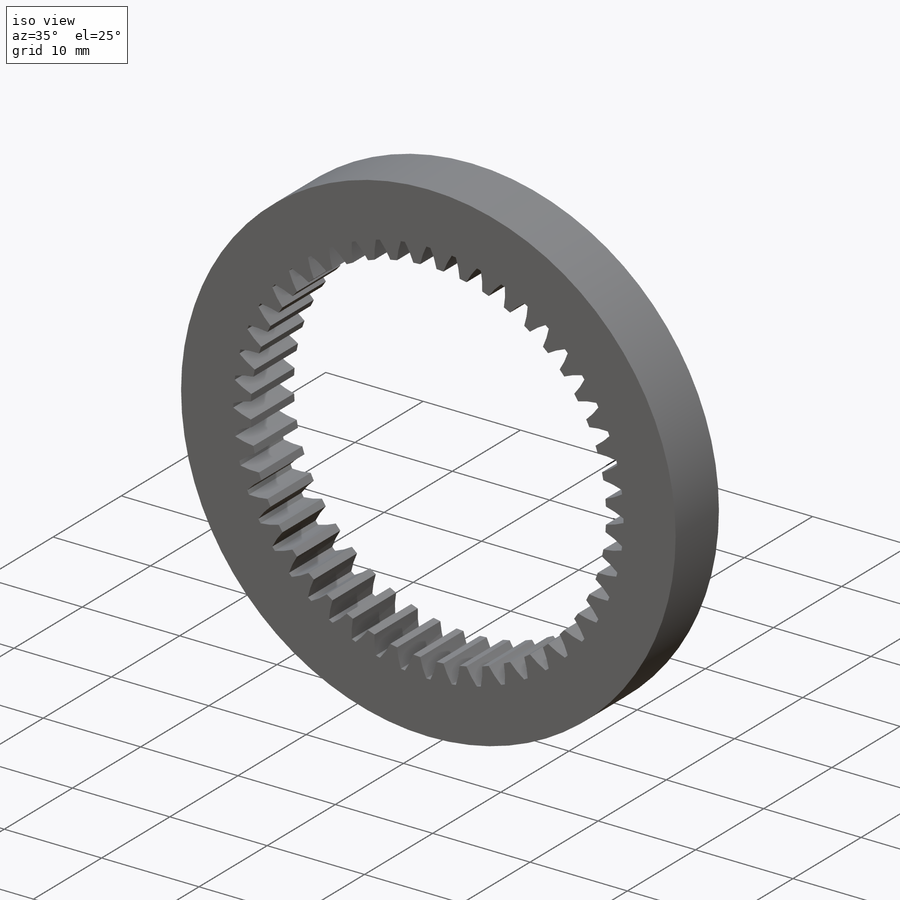
[diagram: iso view]
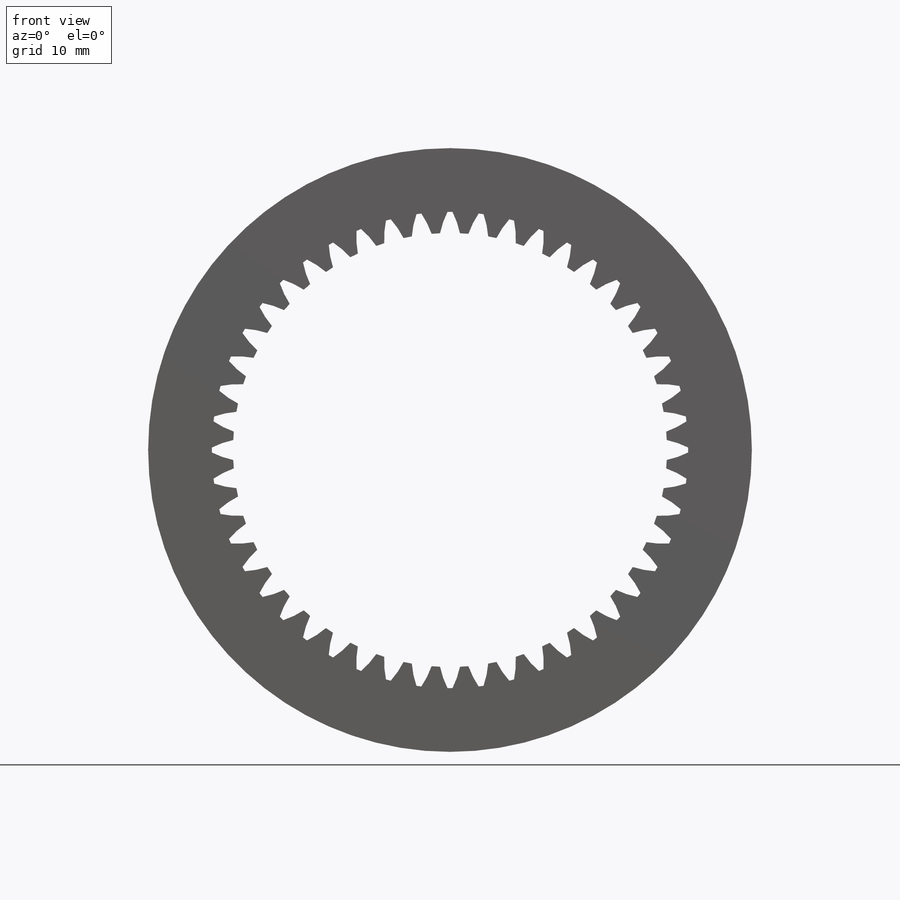
[diagram: front view]
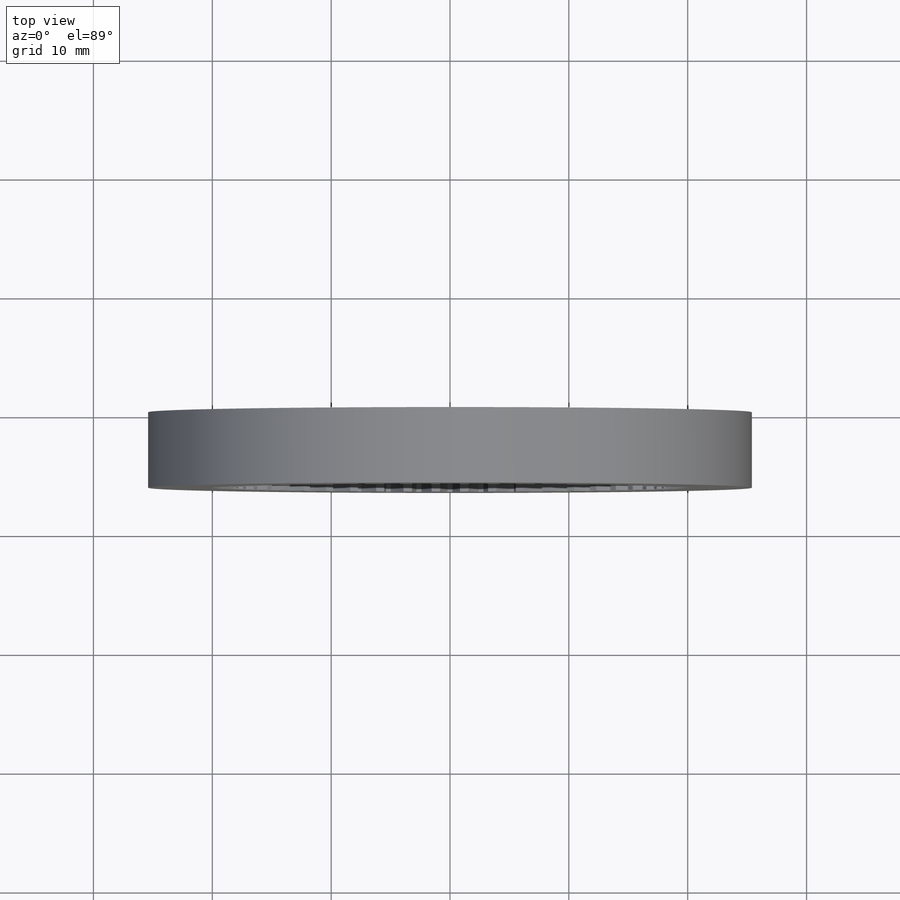
[diagram: top view]
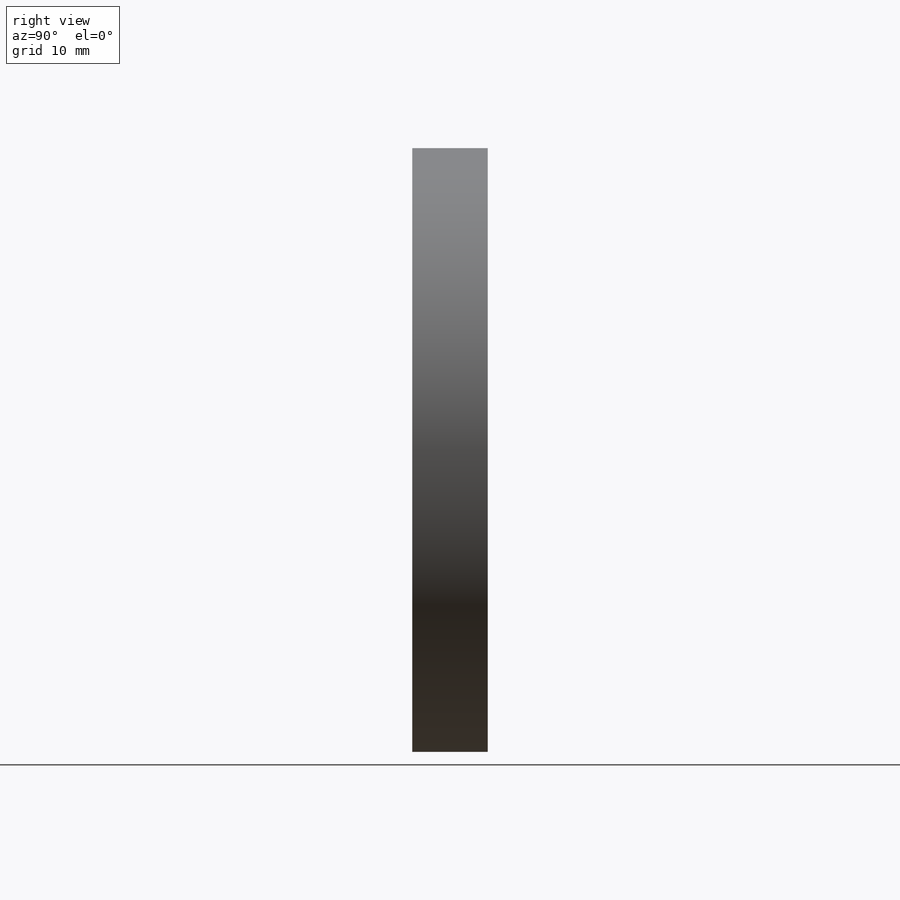
[diagram: right view]
SOLIDWORKS PART (.sldprt)
format: sldprt  version: not decoded by parser v0  size: 665,088 bytes
history: native  units: mm
features: sketch x4, cut_extrude x2, material x1, extrude x1, pattern_circular x1 + 1 further entry (+12 scaffold rows collapsed)
feature tree (22):
  scaffold x12  (default folders/planes/origin — collapsed)
  material  "Material <not specified>"
  "Annotations"  RD1=279.4mm RD2=238.125mm RD3=238.125mm
  sketch  "Sketch2"
  sketch  "gearSketch"  dims[bodyOD=50.8mm]
  extrude  "gearBody"  Depth=6.35mm face=6.35mm
  sketch  "boreSketch"  dims[minorDiameterBore=36.5125mm]
  cut_extrude  "bodyBore"  [1 undecoded]
  sketch  "toothCut1"  dims[c1.minorDiameter=~437.608133mm c1.baseDia=~35.802289mm c1.pd=38.1mm c1.od=~40.084375mm c1.overOD=~476.419333mm c1.flankRadius2=~3.222469mm c2.flankRadius2=~7.336707mm c2.rFillet=~3.324852mm c2.minorDiameter=36.5125mm c2.D1=~3.87666mm c2.toothAng=~1.666667deg c2.cd=52.6161mm c2.flankRadius=~3.222469mm c3.flankRadius=~7.336707mm c3.D1=38.1mm c4.D1=3.0deg c5.D1=~5.768036mm c6.D1=~69.852824deg c7.D1=38.1mm c8.D1=~66.852824deg c9.D1=52.6161mm c9.D2=~52.767155mm c9.cd=279.4mm c10.D1=228.6mm c10.totalToothAngle=~1.666667deg c11.D1=228.6mm c11.toothAng=1.875deg]
  cut_extrude  "Cut-Extrude2"  [1 undecoded]
  pattern_circular  "CirPattern1"  Count=48 Angle=7.5deg numTeeth=48 toothAng2=7.5deg
decode coverage: 5 of 8 modeling features carry decoded parameters; 1 rows unclassified (native names shown)
note: ~ marks probable driven/reference dimensions
note: 2 parameter values undecoded
note: suppression state not decoded; provenance and decode notes live in map.json
